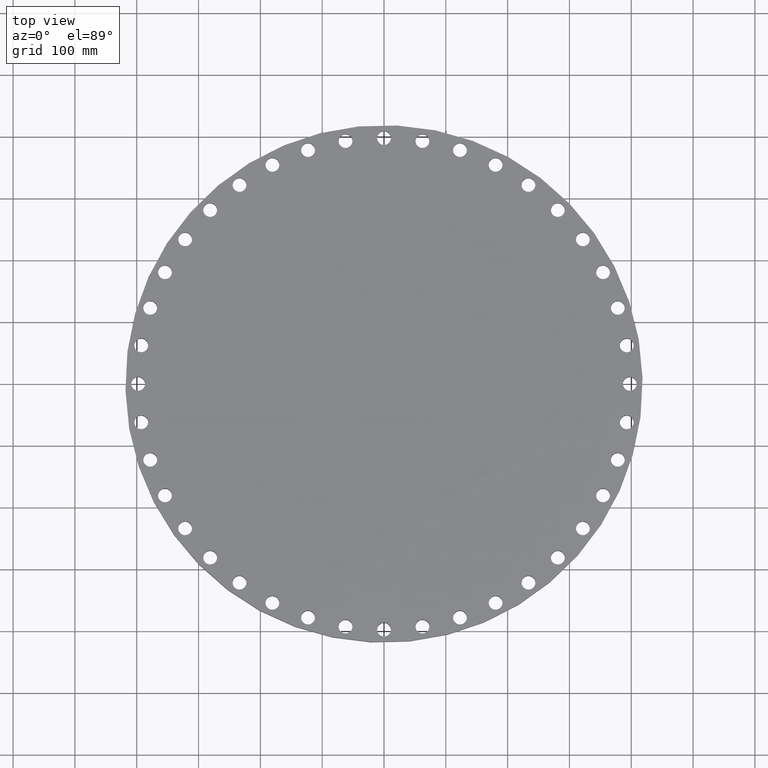
[diagram: clean part render]
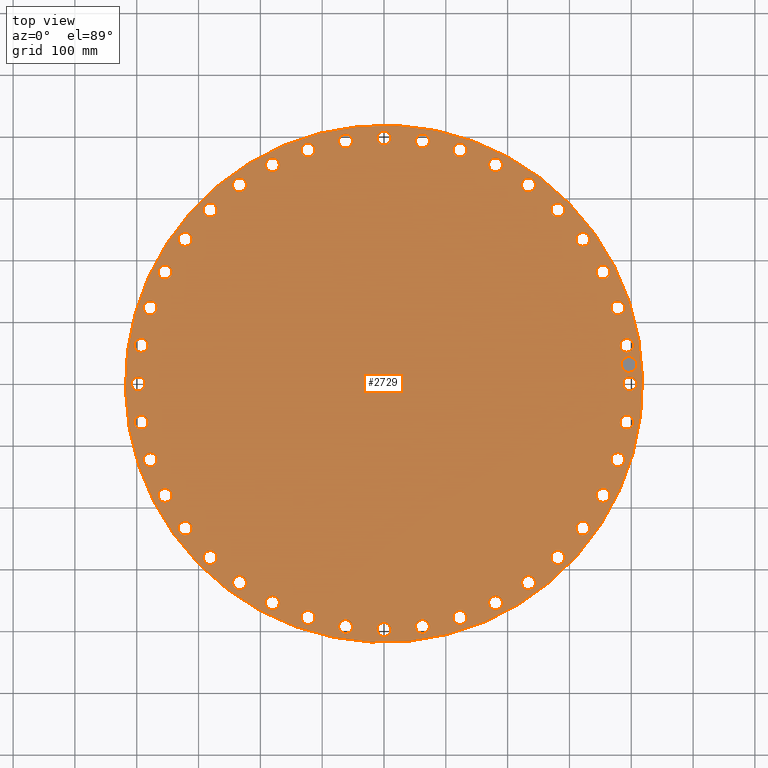
[diagram: same view with one face highlighted and labeled with its STEP entity id]
A machine part, top view. The second image highlights one B-rep face of the part: STEP entity #2729.
In plain terms, the highlighted planar face has unit normal (0, 0, -1).
Its self-contained STEP definition (entity closure, byte-faithful):
#65=AXIS2_PLACEMENT_3D('Circle Axis2P3D',#63,#64,$) ;
#82=AXIS2_PLACEMENT_3D('Circle Axis2P3D',#80,#81,$) ;
#115=AXIS2_PLACEMENT_3D('Circle Axis2P3D',#113,#114,$) ;
#139=AXIS2_PLACEMENT_3D('Circle Axis2P3D',#137,#138,$) ;
#886=AXIS2_PLACEMENT_3D('Circle Axis2P3D',#884,#885,$) ;
#898=AXIS2_PLACEMENT_3D('Circle Axis2P3D',#896,#897,$) ;
#929=AXIS2_PLACEMENT_3D('Circle Axis2P3D',#927,#928,$) ;
#941=AXIS2_PLACEMENT_3D('Circle Axis2P3D',#939,#940,$) ;
#972=AXIS2_PLACEMENT_3D('Circle Axis2P3D',#970,#971,$) ;
#984=AXIS2_PLACEMENT_3D('Circle Axis2P3D',#982,#983,$) ;
#1015=AXIS2_PLACEMENT_3D('Circle Axis2P3D',#1013,#1014,$) ;
#1027=AXIS2_PLACEMENT_3D('Circle Axis2P3D',#1025,#1026,$) ;
#1058=AXIS2_PLACEMENT_3D('Circle Axis2P3D',#1056,#1057,$) ;
#1070=AXIS2_PLACEMENT_3D('Circle Axis2P3D',#1068,#1069,$) ;
#1101=AXIS2_PLACEMENT_3D('Circle Axis2P3D',#1099,#1100,$) ;
#1113=AXIS2_PLACEMENT_3D('Circle Axis2P3D',#1111,#1112,$) ;
#1144=AXIS2_PLACEMENT_3D('Circle Axis2P3D',#1142,#1143,$) ;
#1156=AXIS2_PLACEMENT_3D('Circle Axis2P3D',#1154,#1155,$) ;
#1187=AXIS2_PLACEMENT_3D('Circle Axis2P3D',#1185,#1186,$) ;
#1199=AXIS2_PLACEMENT_3D('Circle Axis2P3D',#1197,#1198,$) ;
#1230=AXIS2_PLACEMENT_3D('Circle Axis2P3D',#1228,#1229,$) ;
#1242=AXIS2_PLACEMENT_3D('Circle Axis2P3D',#1240,#1241,$) ;
#1273=AXIS2_PLACEMENT_3D('Circle Axis2P3D',#1271,#1272,$) ;
#1285=AXIS2_PLACEMENT_3D('Circle Axis2P3D',#1283,#1284,$) ;
#1316=AXIS2_PLACEMENT_3D('Circle Axis2P3D',#1314,#1315,$) ;
#1328=AXIS2_PLACEMENT_3D('Circle Axis2P3D',#1326,#1327,$) ;
#1359=AXIS2_PLACEMENT_3D('Circle Axis2P3D',#1357,#1358,$) ;
#1371=AXIS2_PLACEMENT_3D('Circle Axis2P3D',#1369,#1370,$) ;
#1402=AXIS2_PLACEMENT_3D('Circle Axis2P3D',#1400,#1401,$) ;
#1414=AXIS2_PLACEMENT_3D('Circle Axis2P3D',#1412,#1413,$) ;
#1445=AXIS2_PLACEMENT_3D('Circle Axis2P3D',#1443,#1444,$) ;
#1457=AXIS2_PLACEMENT_3D('Circle Axis2P3D',#1455,#1456,$) ;
#1488=AXIS2_PLACEMENT_3D('Circle Axis2P3D',#1486,#1487,$) ;
#1500=AXIS2_PLACEMENT_3D('Circle Axis2P3D',#1498,#1499,$) ;
#1531=AXIS2_PLACEMENT_3D('Circle Axis2P3D',#1529,#1530,$) ;
#1543=AXIS2_PLACEMENT_3D('Circle Axis2P3D',#1541,#1542,$) ;
#1574=AXIS2_PLACEMENT_3D('Circle Axis2P3D',#1572,#1573,$) ;
#1586=AXIS2_PLACEMENT_3D('Circle Axis2P3D',#1584,#1585,$) ;
#1617=AXIS2_PLACEMENT_3D('Circle Axis2P3D',#1615,#1616,$) ;
#1629=AXIS2_PLACEMENT_3D('Circle Axis2P3D',#1627,#1628,$) ;
#1660=AXIS2_PLACEMENT_3D('Circle Axis2P3D',#1658,#1659,$) ;
#1672=AXIS2_PLACEMENT_3D('Circle Axis2P3D',#1670,#1671,$) ;
#1703=AXIS2_PLACEMENT_3D('Circle Axis2P3D',#1701,#1702,$) ;
#1715=AXIS2_PLACEMENT_3D('Circle Axis2P3D',#1713,#1714,$) ;
#1746=AXIS2_PLACEMENT_3D('Circle Axis2P3D',#1744,#1745,$) ;
#1758=AXIS2_PLACEMENT_3D('Circle Axis2P3D',#1756,#1757,$) ;
#1789=AXIS2_PLACEMENT_3D('Circle Axis2P3D',#1787,#1788,$) ;
#1801=AXIS2_PLACEMENT_3D('Circle Axis2P3D',#1799,#1800,$) ;
#1832=AXIS2_PLACEMENT_3D('Circle Axis2P3D',#1830,#1831,$) ;
#1844=AXIS2_PLACEMENT_3D('Circle Axis2P3D',#1842,#1843,$) ;
#1875=AXIS2_PLACEMENT_3D('Circle Axis2P3D',#1873,#1874,$) ;
#1887=AXIS2_PLACEMENT_3D('Circle Axis2P3D',#1885,#1886,$) ;
#1918=AXIS2_PLACEMENT_3D('Circle Axis2P3D',#1916,#1917,$) ;
#1930=AXIS2_PLACEMENT_3D('Circle Axis2P3D',#1928,#1929,$) ;
#1961=AXIS2_PLACEMENT_3D('Circle Axis2P3D',#1959,#1960,$) ;
#1973=AXIS2_PLACEMENT_3D('Circle Axis2P3D',#1971,#1972,$) ;
#2004=AXIS2_PLACEMENT_3D('Circle Axis2P3D',#2002,#2003,$) ;
#2016=AXIS2_PLACEMENT_3D('Circle Axis2P3D',#2014,#2015,$) ;
#2047=AXIS2_PLACEMENT_3D('Circle Axis2P3D',#2045,#2046,$) ;
#2059=AXIS2_PLACEMENT_3D('Circle Axis2P3D',#2057,#2058,$) ;
#2090=AXIS2_PLACEMENT_3D('Circle Axis2P3D',#2088,#2089,$) ;
#2102=AXIS2_PLACEMENT_3D('Circle Axis2P3D',#2100,#2101,$) ;
#2133=AXIS2_PLACEMENT_3D('Circle Axis2P3D',#2131,#2132,$) ;
#2145=AXIS2_PLACEMENT_3D('Circle Axis2P3D',#2143,#2144,$) ;
#2176=AXIS2_PLACEMENT_3D('Circle Axis2P3D',#2174,#2175,$) ;
#2188=AXIS2_PLACEMENT_3D('Circle Axis2P3D',#2186,#2187,$) ;
#2219=AXIS2_PLACEMENT_3D('Circle Axis2P3D',#2217,#2218,$) ;
#2231=AXIS2_PLACEMENT_3D('Circle Axis2P3D',#2229,#2230,$) ;
#2262=AXIS2_PLACEMENT_3D('Circle Axis2P3D',#2260,#2261,$) ;
#2274=AXIS2_PLACEMENT_3D('Circle Axis2P3D',#2272,#2273,$) ;
#2305=AXIS2_PLACEMENT_3D('Circle Axis2P3D',#2303,#2304,$) ;
#2317=AXIS2_PLACEMENT_3D('Circle Axis2P3D',#2315,#2316,$) ;
#2348=AXIS2_PLACEMENT_3D('Circle Axis2P3D',#2346,#2347,$) ;
#2360=AXIS2_PLACEMENT_3D('Circle Axis2P3D',#2358,#2359,$) ;
#2391=AXIS2_PLACEMENT_3D('Circle Axis2P3D',#2389,#2390,$) ;
#2403=AXIS2_PLACEMENT_3D('Circle Axis2P3D',#2401,#2402,$) ;
#2434=AXIS2_PLACEMENT_3D('Circle Axis2P3D',#2432,#2433,$) ;
#2446=AXIS2_PLACEMENT_3D('Circle Axis2P3D',#2444,#2445,$) ;
#2477=AXIS2_PLACEMENT_3D('Circle Axis2P3D',#2475,#2476,$) ;
#2489=AXIS2_PLACEMENT_3D('Circle Axis2P3D',#2487,#2488,$) ;
#2520=AXIS2_PLACEMENT_3D('Circle Axis2P3D',#2518,#2519,$) ;
#2532=AXIS2_PLACEMENT_3D('Circle Axis2P3D',#2530,#2531,$) ;
#2545=AXIS2_PLACEMENT_3D('Plane Axis2P3D',#2542,#2543,#2544) ;
#2713=AXIS2_PLACEMENT_3D('Circle Axis2P3D',#2711,#2712,$) ;
#2722=AXIS2_PLACEMENT_3D('Circle Axis2P3D',#2720,#2721,$) ;
#46=CARTESIAN_POINT('Vertex',(15.2688636728,0.210947236987,1.82000000001)) ;
#60=CARTESIAN_POINT('Vertex',(16.0411363273,-0.210947236987,1.82000000001)) ;
#63=CARTESIAN_POINT('Axis2P3D Location',(15.6550000001,0.,1.82000000001)) ;
#80=CARTESIAN_POINT('Axis2P3D Location',(15.6550000001,0.,1.82000000001)) ;
#110=CARTESIAN_POINT('Vertex',(7.89613862084,14.4537847944,1.82000000001)) ;
#113=CARTESIAN_POINT('Axis2P3D Location',(0.,0.,1.82000000001)) ;
#117=CARTESIAN_POINT('Vertex',(-7.89613862084,-14.4537847944,1.82000000001)) ;
#137=CARTESIAN_POINT('Axis2P3D Location',(0.,0.,1.82000000001)) ;
#874=CARTESIAN_POINT('Vertex',(-15.113878042,2.18022639398,1.82000000001)) ;
#881=CARTESIAN_POINT('Vertex',(-15.8106439022,2.71773670645,1.82000000001)) ;
#884=CARTESIAN_POINT('Axis2P3D Location',(-15.4622609721,2.44898155021,1.82000000001)) ;
#896=CARTESIAN_POINT('Axis2P3D Location',(-15.4622609721,2.44898155021,1.82000000001)) ;
#917=CARTESIAN_POINT('Vertex',(14.5867385736,-4.51771561537,1.82000000001)) ;
#924=CARTESIAN_POINT('Vertex',(15.1908409517,-5.15760647855,1.82000000001)) ;
#927=CARTESIAN_POINT('Axis2P3D Location',(14.8887897627,-4.83766104696,1.82000000001)) ;
#939=CARTESIAN_POINT('Axis2P3D Location',(14.8887897627,-4.83766104696,1.82000000001)) ;
#960=CARTESIAN_POINT('Vertex',(-14.5867385736,4.51771561537,1.82000000001)) ;
#967=CARTESIAN_POINT('Vertex',(-15.1908409517,5.15760647855,1.82000000001)) ;
#970=CARTESIAN_POINT('Axis2P3D Location',(-14.8887897627,4.83766104696,1.82000000001)) ;
#982=CARTESIAN_POINT('Axis2P3D Location',(-14.8887897627,4.83766104696,1.82000000001)) ;
#1003=CARTESIAN_POINT('Vertex',(13.700425191,-6.74396368487,1.82000000001)) ;
#1010=CARTESIAN_POINT('Vertex',(14.1969890815,-7.47047886203,1.82000000001)) ;
#1013=CARTESIAN_POINT('Axis2P3D Location',(13.9487071362,-7.10722127345,1.82000000001)) ;
#1025=CARTESIAN_POINT('Axis2P3D Location',(13.9487071362,-7.10722127345,1.82000000001)) ;
#1046=CARTESIAN_POINT('Vertex',(-13.700425191,6.74396368487,1.82000000001)) ;
#1053=CARTESIAN_POINT('Vertex',(-14.1969890815,7.47047886203,1.82000000001)) ;
#1056=CARTESIAN_POINT('Axis2P3D Location',(-13.9487071362,7.10722127345,1.82000000001)) ;
#1068=CARTESIAN_POINT('Axis2P3D Location',(-13.9487071362,7.10722127345,1.82000000001)) ;
#1089=CARTESIAN_POINT('Vertex',(12.476761871,-8.80415298651,1.82000000001)) ;
#1096=CARTESIAN_POINT('Vertex',(12.853560223,-9.59940326284,1.82000000001)) ;
#1099=CARTESIAN_POINT('Axis2P3D Location',(12.665161047,-9.20177812468,1.82000000001)) ;
#1111=CARTESIAN_POINT('Axis2P3D Location',(12.665161047,-9.20177812468,1.82000000001)) ;
#1132=CARTESIAN_POINT('Vertex',(-12.476761871,8.80415298651,1.82000000001)) ;
#1139=CARTESIAN_POINT('Vertex',(-12.853560223,9.59940326284,1.82000000001)) ;
#1142=CARTESIAN_POINT('Axis2P3D Location',(-12.665161047,9.20177812468,1.82000000001)) ;
#1154=CARTESIAN_POINT('Axis2P3D Location',(-12.665161047,9.20177812468,1.82000000001)) ;
#1175=CARTESIAN_POINT('Vertex',(10.9458792658,-10.6475548223,1.82000000001)) ;
#1182=CARTESIAN_POINT('Vertex',(11.1936340532,-11.4919584967,1.82000000001)) ;
#1185=CARTESIAN_POINT('Axis2P3D Location',(11.0697566595,-11.0697566595,1.82000000001)) ;
#1197=CARTESIAN_POINT('Axis2P3D Location',(11.0697566595,-11.0697566595,1.82000000001)) ;
#1218=CARTESIAN_POINT('Vertex',(-10.9458792658,10.6475548223,1.82000000001)) ;
#1225=CARTESIAN_POINT('Vertex',(-11.1936340532,11.4919584967,1.82000000001)) ;
#1228=CARTESIAN_POINT('Axis2P3D Location',(-11.0697566595,11.0697566595,1.82000000001)) ;
#1240=CARTESIAN_POINT('Axis2P3D Location',(-11.0697566595,11.0697566595,1.82000000001)) ;
#1261=CARTESIAN_POINT('Vertex',(9.14547278579,-12.2287785212,1.82000000001)) ;
#1268=CARTESIAN_POINT('Vertex',(9.25808346356,-13.1015435728,1.82000000001)) ;
#1271=CARTESIAN_POINT('Axis2P3D Location',(9.20177812468,-12.665161047,1.82000000001)) ;
#1283=CARTESIAN_POINT('Axis2P3D Location',(9.20177812468,-12.665161047,1.82000000001)) ;
#1304=CARTESIAN_POINT('Vertex',(-9.14547278579,12.2287785212,1.82000000001)) ;
#1311=CARTESIAN_POINT('Vertex',(-9.25808346356,13.1015435728,1.82000000001)) ;
#1314=CARTESIAN_POINT('Axis2P3D Location',(-9.20177812468,12.665161047,1.82000000001)) ;
#1326=CARTESIAN_POINT('Axis2P3D Location',(-9.20177812468,12.665161047,1.82000000001)) ;
#1347=CARTESIAN_POINT('Vertex',(7.1198744137,-13.5088891079,1.82000000001)) ;
#1354=CARTESIAN_POINT('Vertex',(7.0945681332,-14.3885251646,1.82000000001)) ;
#1357=CARTESIAN_POINT('Axis2P3D Location',(7.10722127345,-13.9487071362,1.82000000001)) ;
#1369=CARTESIAN_POINT('Axis2P3D Location',(7.10722127345,-13.9487071362,1.82000000001)) ;
#1390=CARTESIAN_POINT('Vertex',(-7.1198744137,13.5088891079,1.82000000001)) ;
#1397=CARTESIAN_POINT('Vertex',(-7.0945681332,14.3885251646,1.82000000001)) ;
#1400=CARTESIAN_POINT('Axis2P3D Location',(-7.10722127345,13.9487071362,1.82000000001)) ;
#1412=CARTESIAN_POINT('Axis2P3D Location',(-7.10722127345,13.9487071362,1.82000000001)) ;
#1433=CARTESIAN_POINT('Vertex',(4.91896110403,-14.4563660113,1.82000000001)) ;
#1440=CARTESIAN_POINT('Vertex',(4.75636098989,-15.321213514,1.82000000001)) ;
#1443=CARTESIAN_POINT('Axis2P3D Location',(4.83766104696,-14.8887897627,1.82000000001)) ;
#1455=CARTESIAN_POINT('Axis2P3D Location',(4.83766104696,-14.8887897627,1.82000000001)) ;
#1476=CARTESIAN_POINT('Vertex',(-4.91896110403,14.4563660113,1.82000000001)) ;
#1483=CARTESIAN_POINT('Vertex',(-4.75636098989,15.321213514,1.82000000001)) ;
#1486=CARTESIAN_POINT('Axis2P3D Location',(-4.83766104696,14.8887897627,1.82000000001)) ;
#1498=CARTESIAN_POINT('Axis2P3D Location',(-4.83766104696,14.8887897627,1.82000000001)) ;
#1519=CARTESIAN_POINT('Vertex',(2.59692664688,-15.0478792056,1.82000000001)) ;
#1526=CARTESIAN_POINT('Vertex',(2.30103645355,-15.8766427385,1.82000000001)) ;
#1529=CARTESIAN_POINT('Axis2P3D Location',(2.44898155021,-15.4622609721,1.82000000001)) ;
#1541=CARTESIAN_POINT('Axis2P3D Location',(2.44898155021,-15.4622609721,1.82000000001)) ;
#1562=CARTESIAN_POINT('Vertex',(-2.59692664688,15.0478792056,1.82000000001)) ;
#1569=CARTESIAN_POINT('Vertex',(-2.30103645355,15.8766427385,1.82000000001)) ;
#1572=CARTESIAN_POINT('Axis2P3D Location',(-2.44898155021,15.4622609721,1.82000000001)) ;
#1584=CARTESIAN_POINT('Axis2P3D Location',(-2.44898155021,15.4622609721,1.82000000001)) ;
#1605=CARTESIAN_POINT('Vertex',(0.210947236987,-15.2688636728,1.82000000001)) ;
#1612=CARTESIAN_POINT('Vertex',(-0.210947236987,-16.0411363273,1.82000000001)) ;
#1615=CARTESIAN_POINT('Axis2P3D Location',(4.43470057215E-015,-15.6550000001,1.82000000001)) ;
#1627=CARTESIAN_POINT('Axis2P3D Location',(4.43470057215E-015,-15.6550000001,1.82000000001)) ;
#1648=CARTESIAN_POINT('Vertex',(-0.210947236987,15.2688636728,1.82000000001)) ;
#1655=CARTESIAN_POINT('Vertex',(0.210947236987,16.0411363273,1.82000000001)) ;
#1658=CARTESIAN_POINT('Axis2P3D Location',(-1.45422801302E-014,15.6550000001,1.82000000001)) ;
#1670=CARTESIAN_POINT('Axis2P3D Location',(-1.45422801302E-014,15.6550000001,1.82000000001)) ;
#1691=CARTESIAN_POINT('Vertex',(-2.18022639398,-15.113878042,1.82000000001)) ;
#1698=CARTESIAN_POINT('Vertex',(-2.71773670645,-15.8106439022,1.82000000001)) ;
#1701=CARTESIAN_POINT('Axis2P3D Location',(-2.44898155021,-15.4622609721,1.82000000001)) ;
#1713=CARTESIAN_POINT('Axis2P3D Location',(-2.44898155021,-15.4622609721,1.82000000001)) ;
#1734=CARTESIAN_POINT('Vertex',(2.18022639398,15.113878042,1.82000000001)) ;
#1741=CARTESIAN_POINT('Vertex',(2.71773670645,15.8106439022,1.82000000001)) ;
#1744=CARTESIAN_POINT('Axis2P3D Location',(2.44898155021,15.4622609721,1.82000000001)) ;
#1756=CARTESIAN_POINT('Axis2P3D Location',(2.44898155021,15.4622609721,1.82000000001)) ;
#1777=CARTESIAN_POINT('Vertex',(-4.51771561537,-14.5867385736,1.82000000001)) ;
#1784=CARTESIAN_POINT('Vertex',(-5.15760647855,-15.1908409517,1.82000000001)) ;
#1787=CARTESIAN_POINT('Axis2P3D Location',(-4.83766104696,-14.8887897627,1.82000000001)) ;
#1799=CARTESIAN_POINT('Axis2P3D Location',(-4.83766104696,-14.8887897627,1.82000000001)) ;
#1820=CARTESIAN_POINT('Vertex',(4.51771561537,14.5867385736,1.82000000001)) ;
#1827=CARTESIAN_POINT('Vertex',(5.15760647855,15.1908409517,1.82000000001)) ;
#1830=CARTESIAN_POINT('Axis2P3D Location',(4.83766104696,14.8887897627,1.82000000001)) ;
#1842=CARTESIAN_POINT('Axis2P3D Location',(4.83766104696,14.8887897627,1.82000000001)) ;
#1863=CARTESIAN_POINT('Vertex',(-6.74396368487,-13.700425191,1.82000000001)) ;
#1870=CARTESIAN_POINT('Vertex',(-7.47047886203,-14.1969890815,1.82000000001)) ;
#1873=CARTESIAN_POINT('Axis2P3D Location',(-7.10722127345,-13.9487071362,1.82000000001)) ;
#1885=CARTESIAN_POINT('Axis2P3D Location',(-7.10722127345,-13.9487071362,1.82000000001)) ;
#1906=CARTESIAN_POINT('Vertex',(6.74396368487,13.700425191,1.82000000001)) ;
#1913=CARTESIAN_POINT('Vertex',(7.47047886203,14.1969890815,1.82000000001)) ;
#1916=CARTESIAN_POINT('Axis2P3D Location',(7.10722127345,13.9487071362,1.82000000001)) ;
#1928=CARTESIAN_POINT('Axis2P3D Location',(7.10722127345,13.9487071362,1.82000000001)) ;
#1949=CARTESIAN_POINT('Vertex',(-8.80415298651,-12.476761871,1.82000000001)) ;
#1956=CARTESIAN_POINT('Vertex',(-9.59940326284,-12.853560223,1.82000000001)) ;
#1959=CARTESIAN_POINT('Axis2P3D Location',(-9.20177812468,-12.665161047,1.82000000001)) ;
#1971=CARTESIAN_POINT('Axis2P3D Location',(-9.20177812468,-12.665161047,1.82000000001)) ;
#1992=CARTESIAN_POINT('Vertex',(8.80415298651,12.476761871,1.82000000001)) ;
#1999=CARTESIAN_POINT('Vertex',(9.59940326284,12.853560223,1.82000000001)) ;
#2002=CARTESIAN_POINT('Axis2P3D Location',(9.20177812468,12.665161047,1.82000000001)) ;
#2014=CARTESIAN_POINT('Axis2P3D Location',(9.20177812468,12.665161047,1.82000000001)) ;
#2035=CARTESIAN_POINT('Vertex',(-10.6475548223,-10.9458792658,1.82000000001)) ;
#2042=CARTESIAN_POINT('Vertex',(-11.4919584967,-11.1936340532,1.82000000001)) ;
#2045=CARTESIAN_POINT('Axis2P3D Location',(-11.0697566595,-11.0697566595,1.82000000001)) ;
#2057=CARTESIAN_POINT('Axis2P3D Location',(-11.0697566595,-11.0697566595,1.82000000001)) ;
#2078=CARTESIAN_POINT('Vertex',(10.6475548223,10.9458792658,1.82000000001)) ;
#2085=CARTESIAN_POINT('Vertex',(11.4919584967,11.1936340532,1.82000000001)) ;
#2088=CARTESIAN_POINT('Axis2P3D Location',(11.0697566595,11.0697566595,1.82000000001)) ;
#2100=CARTESIAN_POINT('Axis2P3D Location',(11.0697566595,11.0697566595,1.82000000001)) ;
#2121=CARTESIAN_POINT('Vertex',(-12.2287785212,-9.14547278579,1.82000000001)) ;
#2128=CARTESIAN_POINT('Vertex',(-13.1015435728,-9.25808346356,1.82000000001)) ;
#2131=CARTESIAN_POINT('Axis2P3D Location',(-12.665161047,-9.20177812468,1.82000000001)) ;
#2143=CARTESIAN_POINT('Axis2P3D Location',(-12.665161047,-9.20177812468,1.82000000001)) ;
#2164=CARTESIAN_POINT('Vertex',(12.2287785212,9.14547278579,1.82000000001)) ;
#2171=CARTESIAN_POINT('Vertex',(13.1015435728,9.25808346356,1.82000000001)) ;
#2174=CARTESIAN_POINT('Axis2P3D Location',(12.665161047,9.20177812468,1.82000000001)) ;
#2186=CARTESIAN_POINT('Axis2P3D Location',(12.665161047,9.20177812468,1.82000000001)) ;
#2207=CARTESIAN_POINT('Vertex',(-13.5088891079,-7.1198744137,1.82000000001)) ;
#2214=CARTESIAN_POINT('Vertex',(-14.3885251646,-7.0945681332,1.82000000001)) ;
#2217=CARTESIAN_POINT('Axis2P3D Location',(-13.9487071362,-7.10722127345,1.82000000001)) ;
#2229=CARTESIAN_POINT('Axis2P3D Location',(-13.9487071362,-7.10722127345,1.82000000001)) ;
#2250=CARTESIAN_POINT('Vertex',(13.5088891079,7.1198744137,1.82000000001)) ;
#2257=CARTESIAN_POINT('Vertex',(14.3885251646,7.0945681332,1.82000000001)) ;
#2260=CARTESIAN_POINT('Axis2P3D Location',(13.9487071362,7.10722127345,1.82000000001)) ;
#2272=CARTESIAN_POINT('Axis2P3D Location',(13.9487071362,7.10722127345,1.82000000001)) ;
#2293=CARTESIAN_POINT('Vertex',(-14.4563660113,-4.91896110403,1.82000000001)) ;
#2300=CARTESIAN_POINT('Vertex',(-15.321213514,-4.75636098989,1.82000000001)) ;
#2303=CARTESIAN_POINT('Axis2P3D Location',(-14.8887897627,-4.83766104696,1.82000000001)) ;
#2315=CARTESIAN_POINT('Axis2P3D Location',(-14.8887897627,-4.83766104696,1.82000000001)) ;
#2336=CARTESIAN_POINT('Vertex',(14.4563660113,4.91896110403,1.82000000001)) ;
#2343=CARTESIAN_POINT('Vertex',(15.321213514,4.75636098989,1.82000000001)) ;
#2346=CARTESIAN_POINT('Axis2P3D Location',(14.8887897627,4.83766104696,1.82000000001)) ;
#2358=CARTESIAN_POINT('Axis2P3D Location',(14.8887897627,4.83766104696,1.82000000001)) ;
#2379=CARTESIAN_POINT('Vertex',(-15.0478792056,-2.59692664688,1.82000000001)) ;
#2386=CARTESIAN_POINT('Vertex',(-15.8766427385,-2.30103645355,1.82000000001)) ;
#2389=CARTESIAN_POINT('Axis2P3D Location',(-15.4622609721,-2.44898155021,1.82000000001)) ;
#2401=CARTESIAN_POINT('Axis2P3D Location',(-15.4622609721,-2.44898155021,1.82000000001)) ;
#2422=CARTESIAN_POINT('Vertex',(15.0478792056,2.59692664688,1.82000000001)) ;
#2429=CARTESIAN_POINT('Vertex',(15.8766427385,2.30103645355,1.82000000001)) ;
#2432=CARTESIAN_POINT('Axis2P3D Location',(15.4622609721,2.44898155021,1.82000000001)) ;
#2444=CARTESIAN_POINT('Axis2P3D Location',(15.4622609721,2.44898155021,1.82000000001)) ;
#2465=CARTESIAN_POINT('Vertex',(-15.2688636728,-0.210947236987,1.82000000001)) ;
#2472=CARTESIAN_POINT('Vertex',(-16.0411363273,0.210947236987,1.82000000001)) ;
#2475=CARTESIAN_POINT('Axis2P3D Location',(-15.6550000001,-8.8694011443E-015,1.82000000001)) ;
#2487=CARTESIAN_POINT('Axis2P3D Location',(-15.6550000001,-8.8694011443E-015,1.82000000001)) ;
#2508=CARTESIAN_POINT('Vertex',(15.113878042,-2.18022639398,1.82000000001)) ;
#2515=CARTESIAN_POINT('Vertex',(15.8106439022,-2.71773670645,1.82000000001)) ;
#2518=CARTESIAN_POINT('Axis2P3D Location',(15.4622609721,-2.44898155021,1.82000000001)) ;
#2530=CARTESIAN_POINT('Axis2P3D Location',(15.4622609721,-2.44898155021,1.82000000001)) ;
#2542=CARTESIAN_POINT('Axis2P3D Location',(0.,16.4700000001,1.82000000001)) ;
#2711=CARTESIAN_POINT('Axis2P3D Location',(15.6067408597,1.22827714362,1.82000000001)) ;
#2715=CARTESIAN_POINT('Vertex',(15.5675113118,1.72673581049,1.82000000001)) ;
#2717=CARTESIAN_POINT('Vertex',(15.6459704075,0.729818476756,1.82000000001)) ;
#2720=CARTESIAN_POINT('Axis2P3D Location',(15.6067408597,1.22827714362,1.82000000001)) ;
#64=DIRECTION('Axis2P3D Direction',(0.,-0.,-0.0393700787402)) ;
#81=DIRECTION('Axis2P3D Direction',(0.,-0.,-0.0393700787402)) ;
#114=DIRECTION('Axis2P3D Direction',(0.,0.,-0.0393700787402)) ;
#138=DIRECTION('Axis2P3D Direction',(0.,0.,-0.0393700787402)) ;
#885=DIRECTION('Axis2P3D Direction',(0.,0.,-0.0393700787402)) ;
#897=DIRECTION('Axis2P3D Direction',(0.,0.,-0.0393700787402)) ;
#928=DIRECTION('Axis2P3D Direction',(0.,-0.,-0.0393700787402)) ;
#940=DIRECTION('Axis2P3D Direction',(0.,-0.,-0.0393700787402)) ;
#971=DIRECTION('Axis2P3D Direction',(0.,0.,-0.0393700787402)) ;
#983=DIRECTION('Axis2P3D Direction',(0.,0.,-0.0393700787402)) ;
#1014=DIRECTION('Axis2P3D Direction',(0.,-0.,-0.0393700787402)) ;
#1026=DIRECTION('Axis2P3D Direction',(0.,-0.,-0.0393700787402)) ;
#1057=DIRECTION('Axis2P3D Direction',(0.,0.,-0.0393700787402)) ;
#1069=DIRECTION('Axis2P3D Direction',(0.,0.,-0.0393700787402)) ;
#1100=DIRECTION('Axis2P3D Direction',(0.,-0.,-0.0393700787402)) ;
#1112=DIRECTION('Axis2P3D Direction',(0.,-0.,-0.0393700787402)) ;
#1143=DIRECTION('Axis2P3D Direction',(0.,0.,-0.0393700787402)) ;
#1155=DIRECTION('Axis2P3D Direction',(0.,0.,-0.0393700787402)) ;
#1186=DIRECTION('Axis2P3D Direction',(0.,-0.,-0.0393700787402)) ;
#1198=DIRECTION('Axis2P3D Direction',(0.,-0.,-0.0393700787402)) ;
#1229=DIRECTION('Axis2P3D Direction',(0.,0.,-0.0393700787402)) ;
#1241=DIRECTION('Axis2P3D Direction',(0.,0.,-0.0393700787402)) ;
#1272=DIRECTION('Axis2P3D Direction',(0.,-0.,-0.0393700787402)) ;
#1284=DIRECTION('Axis2P3D Direction',(0.,-0.,-0.0393700787402)) ;
#1315=DIRECTION('Axis2P3D Direction',(0.,0.,-0.0393700787402)) ;
#1327=DIRECTION('Axis2P3D Direction',(0.,0.,-0.0393700787402)) ;
#1358=DIRECTION('Axis2P3D Direction',(0.,-0.,-0.0393700787402)) ;
#1370=DIRECTION('Axis2P3D Direction',(0.,-0.,-0.0393700787402)) ;
#1401=DIRECTION('Axis2P3D Direction',(0.,0.,-0.0393700787402)) ;
#1413=DIRECTION('Axis2P3D Direction',(0.,0.,-0.0393700787402)) ;
#1444=DIRECTION('Axis2P3D Direction',(0.,-0.,-0.0393700787402)) ;
#1456=DIRECTION('Axis2P3D Direction',(0.,-0.,-0.0393700787402)) ;
#1487=DIRECTION('Axis2P3D Direction',(0.,0.,-0.0393700787402)) ;
#1499=DIRECTION('Axis2P3D Direction',(0.,0.,-0.0393700787402)) ;
#1530=DIRECTION('Axis2P3D Direction',(0.,-0.,-0.0393700787402)) ;
#1542=DIRECTION('Axis2P3D Direction',(0.,-0.,-0.0393700787402)) ;
#1573=DIRECTION('Axis2P3D Direction',(0.,0.,-0.0393700787402)) ;
#1585=DIRECTION('Axis2P3D Direction',(0.,0.,-0.0393700787402)) ;
#1616=DIRECTION('Axis2P3D Direction',(0.,-0.,-0.0393700787402)) ;
#1628=DIRECTION('Axis2P3D Direction',(0.,-0.,-0.0393700787402)) ;
#1659=DIRECTION('Axis2P3D Direction',(0.,0.,-0.0393700787402)) ;
#1671=DIRECTION('Axis2P3D Direction',(0.,0.,-0.0393700787402)) ;
#1702=DIRECTION('Axis2P3D Direction',(-0.,0.,-0.0393700787402)) ;
#1714=DIRECTION('Axis2P3D Direction',(-0.,0.,-0.0393700787402)) ;
#1745=DIRECTION('Axis2P3D Direction',(0.,0.,-0.0393700787402)) ;
#1757=DIRECTION('Axis2P3D Direction',(0.,0.,-0.0393700787402)) ;
#1788=DIRECTION('Axis2P3D Direction',(-0.,0.,-0.0393700787402)) ;
#1800=DIRECTION('Axis2P3D Direction',(-0.,0.,-0.0393700787402)) ;
#1831=DIRECTION('Axis2P3D Direction',(0.,0.,-0.0393700787402)) ;
#1843=DIRECTION('Axis2P3D Direction',(0.,0.,-0.0393700787402)) ;
#1874=DIRECTION('Axis2P3D Direction',(-0.,0.,-0.0393700787402)) ;
#1886=DIRECTION('Axis2P3D Direction',(-0.,0.,-0.0393700787402)) ;
#1917=DIRECTION('Axis2P3D Direction',(0.,0.,-0.0393700787402)) ;
#1929=DIRECTION('Axis2P3D Direction',(0.,0.,-0.0393700787402)) ;
#1960=DIRECTION('Axis2P3D Direction',(-0.,0.,-0.0393700787402)) ;
#1972=DIRECTION('Axis2P3D Direction',(-0.,0.,-0.0393700787402)) ;
#2003=DIRECTION('Axis2P3D Direction',(0.,0.,-0.0393700787402)) ;
#2015=DIRECTION('Axis2P3D Direction',(0.,0.,-0.0393700787402)) ;
#2046=DIRECTION('Axis2P3D Direction',(-0.,0.,-0.0393700787402)) ;
#2058=DIRECTION('Axis2P3D Direction',(-0.,0.,-0.0393700787402)) ;
#2089=DIRECTION('Axis2P3D Direction',(0.,0.,-0.0393700787402)) ;
#2101=DIRECTION('Axis2P3D Direction',(0.,0.,-0.0393700787402)) ;
#2132=DIRECTION('Axis2P3D Direction',(-0.,0.,-0.0393700787402)) ;
#2144=DIRECTION('Axis2P3D Direction',(-0.,0.,-0.0393700787402)) ;
#2175=DIRECTION('Axis2P3D Direction',(0.,0.,-0.0393700787402)) ;
#2187=DIRECTION('Axis2P3D Direction',(0.,0.,-0.0393700787402)) ;
#2218=DIRECTION('Axis2P3D Direction',(-0.,0.,-0.0393700787402)) ;
#2230=DIRECTION('Axis2P3D Direction',(-0.,0.,-0.0393700787402)) ;
#2261=DIRECTION('Axis2P3D Direction',(0.,0.,-0.0393700787402)) ;
#2273=DIRECTION('Axis2P3D Direction',(0.,0.,-0.0393700787402)) ;
#2304=DIRECTION('Axis2P3D Direction',(-0.,0.,-0.0393700787402)) ;
#2316=DIRECTION('Axis2P3D Direction',(-0.,0.,-0.0393700787402)) ;
#2347=DIRECTION('Axis2P3D Direction',(0.,0.,-0.0393700787402)) ;
#2359=DIRECTION('Axis2P3D Direction',(0.,0.,-0.0393700787402)) ;
#2390=DIRECTION('Axis2P3D Direction',(-0.,0.,-0.0393700787402)) ;
#2402=DIRECTION('Axis2P3D Direction',(-0.,0.,-0.0393700787402)) ;
#2433=DIRECTION('Axis2P3D Direction',(0.,0.,-0.0393700787402)) ;
#2445=DIRECTION('Axis2P3D Direction',(0.,0.,-0.0393700787402)) ;
#2476=DIRECTION('Axis2P3D Direction',(-0.,0.,-0.0393700787402)) ;
#2488=DIRECTION('Axis2P3D Direction',(-0.,0.,-0.0393700787402)) ;
#2519=DIRECTION('Axis2P3D Direction',(0.,-0.,-0.0393700787402)) ;
#2531=DIRECTION('Axis2P3D Direction',(0.,-0.,-0.0393700787402)) ;
#2543=DIRECTION('Axis2P3D Direction',(0.,0.,-0.0393700787402)) ;
#2544=DIRECTION('Axis2P3D XDirection',(0.0393700787402,0.,0.)) ;
#2712=DIRECTION('Axis2P3D Direction',(0.,0.,-0.0393700787402)) ;
#2721=DIRECTION('Axis2P3D Direction',(0.,0.,-0.0393700787402)) ;
#2548=ORIENTED_EDGE('',*,*,#119,.F.) ;
#2549=ORIENTED_EDGE('',*,*,#141,.F.) ;
#2552=ORIENTED_EDGE('',*,*,#67,.T.) ;
#2553=ORIENTED_EDGE('',*,*,#84,.T.) ;
#2556=ORIENTED_EDGE('',*,*,#2534,.T.) ;
#2557=ORIENTED_EDGE('',*,*,#2522,.T.) ;
#2560=ORIENTED_EDGE('',*,*,#943,.T.) ;
#2561=ORIENTED_EDGE('',*,*,#931,.T.) ;
#2564=ORIENTED_EDGE('',*,*,#1029,.T.) ;
#2565=ORIENTED_EDGE('',*,*,#1017,.T.) ;
#2568=ORIENTED_EDGE('',*,*,#1115,.T.) ;
#2569=ORIENTED_EDGE('',*,*,#1103,.T.) ;
#2572=ORIENTED_EDGE('',*,*,#1201,.T.) ;
#2573=ORIENTED_EDGE('',*,*,#1189,.T.) ;
#2576=ORIENTED_EDGE('',*,*,#1287,.T.) ;
#2577=ORIENTED_EDGE('',*,*,#1275,.T.) ;
#2580=ORIENTED_EDGE('',*,*,#1373,.T.) ;
#2581=ORIENTED_EDGE('',*,*,#1361,.T.) ;
#2584=ORIENTED_EDGE('',*,*,#1459,.T.) ;
#2585=ORIENTED_EDGE('',*,*,#1447,.T.) ;
#2588=ORIENTED_EDGE('',*,*,#1545,.T.) ;
#2589=ORIENTED_EDGE('',*,*,#1533,.T.) ;
#2592=ORIENTED_EDGE('',*,*,#1631,.T.) ;
#2593=ORIENTED_EDGE('',*,*,#1619,.T.) ;
#2596=ORIENTED_EDGE('',*,*,#1717,.T.) ;
#2597=ORIENTED_EDGE('',*,*,#1705,.T.) ;
#2600=ORIENTED_EDGE('',*,*,#1803,.T.) ;
#2601=ORIENTED_EDGE('',*,*,#1791,.T.) ;
#2604=ORIENTED_EDGE('',*,*,#1889,.T.) ;
#2605=ORIENTED_EDGE('',*,*,#1877,.T.) ;
#2608=ORIENTED_EDGE('',*,*,#1975,.T.) ;
#2609=ORIENTED_EDGE('',*,*,#1963,.T.) ;
#2612=ORIENTED_EDGE('',*,*,#2061,.T.) ;
#2613=ORIENTED_EDGE('',*,*,#2049,.T.) ;
#2616=ORIENTED_EDGE('',*,*,#2147,.T.) ;
#2617=ORIENTED_EDGE('',*,*,#2135,.T.) ;
#2620=ORIENTED_EDGE('',*,*,#2233,.T.) ;
#2621=ORIENTED_EDGE('',*,*,#2221,.T.) ;
#2624=ORIENTED_EDGE('',*,*,#2319,.T.) ;
#2625=ORIENTED_EDGE('',*,*,#2307,.T.) ;
#2628=ORIENTED_EDGE('',*,*,#2405,.T.) ;
#2629=ORIENTED_EDGE('',*,*,#2393,.T.) ;
#2632=ORIENTED_EDGE('',*,*,#2491,.T.) ;
#2633=ORIENTED_EDGE('',*,*,#2479,.T.) ;
#2636=ORIENTED_EDGE('',*,*,#900,.T.) ;
#2637=ORIENTED_EDGE('',*,*,#888,.T.) ;
#2640=ORIENTED_EDGE('',*,*,#986,.T.) ;
#2641=ORIENTED_EDGE('',*,*,#974,.T.) ;
#2644=ORIENTED_EDGE('',*,*,#1072,.T.) ;
#2645=ORIENTED_EDGE('',*,*,#1060,.T.) ;
#2648=ORIENTED_EDGE('',*,*,#1158,.T.) ;
#2649=ORIENTED_EDGE('',*,*,#1146,.T.) ;
#2652=ORIENTED_EDGE('',*,*,#1244,.T.) ;
#2653=ORIENTED_EDGE('',*,*,#1232,.T.) ;
#2656=ORIENTED_EDGE('',*,*,#1330,.T.) ;
#2657=ORIENTED_EDGE('',*,*,#1318,.T.) ;
#2660=ORIENTED_EDGE('',*,*,#1416,.T.) ;
#2661=ORIENTED_EDGE('',*,*,#1404,.T.) ;
#2664=ORIENTED_EDGE('',*,*,#1502,.T.) ;
#2665=ORIENTED_EDGE('',*,*,#1490,.T.) ;
#2668=ORIENTED_EDGE('',*,*,#1588,.T.) ;
#2669=ORIENTED_EDGE('',*,*,#1576,.T.) ;
#2672=ORIENTED_EDGE('',*,*,#1674,.T.) ;
#2673=ORIENTED_EDGE('',*,*,#1662,.T.) ;
#2676=ORIENTED_EDGE('',*,*,#1760,.T.) ;
#2677=ORIENTED_EDGE('',*,*,#1748,.T.) ;
#2680=ORIENTED_EDGE('',*,*,#1846,.T.) ;
#2681=ORIENTED_EDGE('',*,*,#1834,.T.) ;
#2684=ORIENTED_EDGE('',*,*,#1932,.T.) ;
#2685=ORIENTED_EDGE('',*,*,#1920,.T.) ;
#2688=ORIENTED_EDGE('',*,*,#2018,.T.) ;
#2689=ORIENTED_EDGE('',*,*,#2006,.T.) ;
#2692=ORIENTED_EDGE('',*,*,#2104,.T.) ;
#2693=ORIENTED_EDGE('',*,*,#2092,.T.) ;
#2696=ORIENTED_EDGE('',*,*,#2190,.T.) ;
#2697=ORIENTED_EDGE('',*,*,#2178,.T.) ;
#2700=ORIENTED_EDGE('',*,*,#2276,.T.) ;
#2701=ORIENTED_EDGE('',*,*,#2264,.T.) ;
#2704=ORIENTED_EDGE('',*,*,#2362,.T.) ;
#2705=ORIENTED_EDGE('',*,*,#2350,.T.) ;
#2708=ORIENTED_EDGE('',*,*,#2448,.T.) ;
#2709=ORIENTED_EDGE('',*,*,#2436,.T.) ;
#2726=ORIENTED_EDGE('',*,*,#2719,.T.) ;
#2727=ORIENTED_EDGE('',*,*,#2724,.T.) ;
#2554=FACE_BOUND('',#2551,.T.) ;
#2558=FACE_BOUND('',#2555,.T.) ;
#2562=FACE_BOUND('',#2559,.T.) ;
#2566=FACE_BOUND('',#2563,.T.) ;
#2570=FACE_BOUND('',#2567,.T.) ;
#2574=FACE_BOUND('',#2571,.T.) ;
#2578=FACE_BOUND('',#2575,.T.) ;
#2582=FACE_BOUND('',#2579,.T.) ;
#2586=FACE_BOUND('',#2583,.T.) ;
#2590=FACE_BOUND('',#2587,.T.) ;
#2594=FACE_BOUND('',#2591,.T.) ;
#2598=FACE_BOUND('',#2595,.T.) ;
#2602=FACE_BOUND('',#2599,.T.) ;
#2606=FACE_BOUND('',#2603,.T.) ;
#2610=FACE_BOUND('',#2607,.T.) ;
#2614=FACE_BOUND('',#2611,.T.) ;
#2618=FACE_BOUND('',#2615,.T.) ;
#2622=FACE_BOUND('',#2619,.T.) ;
#2626=FACE_BOUND('',#2623,.T.) ;
#2630=FACE_BOUND('',#2627,.T.) ;
#2634=FACE_BOUND('',#2631,.T.) ;
#2638=FACE_BOUND('',#2635,.T.) ;
#2642=FACE_BOUND('',#2639,.T.) ;
#2646=FACE_BOUND('',#2643,.T.) ;
#2650=FACE_BOUND('',#2647,.T.) ;
#2654=FACE_BOUND('',#2651,.T.) ;
#2658=FACE_BOUND('',#2655,.T.) ;
#2662=FACE_BOUND('',#2659,.T.) ;
#2666=FACE_BOUND('',#2663,.T.) ;
#2670=FACE_BOUND('',#2667,.T.) ;
#2674=FACE_BOUND('',#2671,.T.) ;
#2678=FACE_BOUND('',#2675,.T.) ;
#2682=FACE_BOUND('',#2679,.T.) ;
#2686=FACE_BOUND('',#2683,.T.) ;
#2690=FACE_BOUND('',#2687,.T.) ;
#2694=FACE_BOUND('',#2691,.T.) ;
#2698=FACE_BOUND('',#2695,.T.) ;
#2702=FACE_BOUND('',#2699,.T.) ;
#2706=FACE_BOUND('',#2703,.T.) ;
#2710=FACE_BOUND('',#2707,.T.) ;
#2728=FACE_BOUND('',#2725,.T.) ;
#2729=ADVANCED_FACE('PartBody',(#2550,#2554,#2558,#2562,#2566,#2570,#2574,#2578,#2582,#2586,#2590,#2594,#2598,#2602,#2606,#2610,#2614,#2618,#2622,#2626,#2630,#2634,#2638,#2642,#2646,#2650,#2654,#2658,#2662,#2666,#2670,#2674,#2678,#2682,#2686,#2690,#2694,#2698,#2702,#2706,#2710,#2728),#2546,.F.) ;
#66=CIRCLE('generated circle',#65,0.440000000002) ;
#83=CIRCLE('generated circle',#82,0.440000000002) ;
#116=CIRCLE('generated circle',#115,16.4700000001) ;
#140=CIRCLE('generated circle',#139,16.4700000001) ;
#887=CIRCLE('generated circle',#886,0.440000000002) ;
#899=CIRCLE('generated circle',#898,0.440000000002) ;
#930=CIRCLE('generated circle',#929,0.440000000002) ;
#942=CIRCLE('generated circle',#941,0.440000000002) ;
#973=CIRCLE('generated circle',#972,0.440000000002) ;
#985=CIRCLE('generated circle',#984,0.440000000002) ;
#1016=CIRCLE('generated circle',#1015,0.440000000002) ;
#1028=CIRCLE('generated circle',#1027,0.440000000002) ;
#1059=CIRCLE('generated circle',#1058,0.440000000002) ;
#1071=CIRCLE('generated circle',#1070,0.440000000002) ;
#1102=CIRCLE('generated circle',#1101,0.440000000002) ;
#1114=CIRCLE('generated circle',#1113,0.440000000002) ;
#1145=CIRCLE('generated circle',#1144,0.440000000002) ;
#1157=CIRCLE('generated circle',#1156,0.440000000002) ;
#1188=CIRCLE('generated circle',#1187,0.440000000002) ;
#1200=CIRCLE('generated circle',#1199,0.440000000002) ;
#1231=CIRCLE('generated circle',#1230,0.440000000002) ;
#1243=CIRCLE('generated circle',#1242,0.440000000002) ;
#1274=CIRCLE('generated circle',#1273,0.440000000002) ;
#1286=CIRCLE('generated circle',#1285,0.440000000002) ;
#1317=CIRCLE('generated circle',#1316,0.440000000002) ;
#1329=CIRCLE('generated circle',#1328,0.440000000002) ;
#1360=CIRCLE('generated circle',#1359,0.440000000002) ;
#1372=CIRCLE('generated circle',#1371,0.440000000002) ;
#1403=CIRCLE('generated circle',#1402,0.440000000002) ;
#1415=CIRCLE('generated circle',#1414,0.440000000002) ;
#1446=CIRCLE('generated circle',#1445,0.440000000002) ;
#1458=CIRCLE('generated circle',#1457,0.440000000002) ;
#1489=CIRCLE('generated circle',#1488,0.440000000002) ;
#1501=CIRCLE('generated circle',#1500,0.440000000002) ;
#1532=CIRCLE('generated circle',#1531,0.440000000002) ;
#1544=CIRCLE('generated circle',#1543,0.440000000002) ;
#1575=CIRCLE('generated circle',#1574,0.440000000002) ;
#1587=CIRCLE('generated circle',#1586,0.440000000002) ;
#1618=CIRCLE('generated circle',#1617,0.440000000002) ;
#1630=CIRCLE('generated circle',#1629,0.440000000002) ;
#1661=CIRCLE('generated circle',#1660,0.440000000002) ;
#1673=CIRCLE('generated circle',#1672,0.440000000002) ;
#1704=CIRCLE('generated circle',#1703,0.440000000002) ;
#1716=CIRCLE('generated circle',#1715,0.440000000002) ;
#1747=CIRCLE('generated circle',#1746,0.440000000002) ;
#1759=CIRCLE('generated circle',#1758,0.440000000002) ;
#1790=CIRCLE('generated circle',#1789,0.440000000002) ;
#1802=CIRCLE('generated circle',#1801,0.440000000002) ;
#1833=CIRCLE('generated circle',#1832,0.440000000002) ;
#1845=CIRCLE('generated circle',#1844,0.440000000002) ;
#1876=CIRCLE('generated circle',#1875,0.440000000002) ;
#1888=CIRCLE('generated circle',#1887,0.440000000002) ;
#1919=CIRCLE('generated circle',#1918,0.440000000002) ;
#1931=CIRCLE('generated circle',#1930,0.440000000002) ;
#1962=CIRCLE('generated circle',#1961,0.440000000002) ;
#1974=CIRCLE('generated circle',#1973,0.440000000002) ;
#2005=CIRCLE('generated circle',#2004,0.440000000002) ;
#2017=CIRCLE('generated circle',#2016,0.440000000002) ;
#2048=CIRCLE('generated circle',#2047,0.440000000002) ;
#2060=CIRCLE('generated circle',#2059,0.440000000002) ;
#2091=CIRCLE('generated circle',#2090,0.440000000002) ;
#2103=CIRCLE('generated circle',#2102,0.440000000002) ;
#2134=CIRCLE('generated circle',#2133,0.440000000002) ;
#2146=CIRCLE('generated circle',#2145,0.440000000002) ;
#2177=CIRCLE('generated circle',#2176,0.440000000002) ;
#2189=CIRCLE('generated circle',#2188,0.440000000002) ;
#2220=CIRCLE('generated circle',#2219,0.440000000002) ;
#2232=CIRCLE('generated circle',#2231,0.440000000002) ;
#2263=CIRCLE('generated circle',#2262,0.440000000002) ;
#2275=CIRCLE('generated circle',#2274,0.440000000002) ;
#2306=CIRCLE('generated circle',#2305,0.440000000002) ;
#2318=CIRCLE('generated circle',#2317,0.440000000002) ;
#2349=CIRCLE('generated circle',#2348,0.440000000002) ;
#2361=CIRCLE('generated circle',#2360,0.440000000002) ;
#2392=CIRCLE('generated circle',#2391,0.440000000002) ;
#2404=CIRCLE('generated circle',#2403,0.440000000002) ;
#2435=CIRCLE('generated circle',#2434,0.440000000002) ;
#2447=CIRCLE('generated circle',#2446,0.440000000002) ;
#2478=CIRCLE('generated circle',#2477,0.440000000002) ;
#2490=CIRCLE('generated circle',#2489,0.440000000002) ;
#2521=CIRCLE('generated circle',#2520,0.440000000002) ;
#2533=CIRCLE('generated circle',#2532,0.440000000002) ;
#2714=CIRCLE('generated circle',#2713,0.500000000002) ;
#2723=CIRCLE('generated circle',#2722,0.500000000002) ;
#67=EDGE_CURVE('',#47,#61,#66,.T.) ;
#84=EDGE_CURVE('',#61,#47,#83,.T.) ;
#119=EDGE_CURVE('',#111,#118,#116,.T.) ;
#141=EDGE_CURVE('',#118,#111,#140,.T.) ;
#888=EDGE_CURVE('',#875,#882,#887,.T.) ;
#900=EDGE_CURVE('',#882,#875,#899,.T.) ;
#931=EDGE_CURVE('',#918,#925,#930,.T.) ;
#943=EDGE_CURVE('',#925,#918,#942,.T.) ;
#974=EDGE_CURVE('',#961,#968,#973,.T.) ;
#986=EDGE_CURVE('',#968,#961,#985,.T.) ;
#1017=EDGE_CURVE('',#1004,#1011,#1016,.T.) ;
#1029=EDGE_CURVE('',#1011,#1004,#1028,.T.) ;
#1060=EDGE_CURVE('',#1047,#1054,#1059,.T.) ;
#1072=EDGE_CURVE('',#1054,#1047,#1071,.T.) ;
#1103=EDGE_CURVE('',#1090,#1097,#1102,.T.) ;
#1115=EDGE_CURVE('',#1097,#1090,#1114,.T.) ;
#1146=EDGE_CURVE('',#1133,#1140,#1145,.T.) ;
#1158=EDGE_CURVE('',#1140,#1133,#1157,.T.) ;
#1189=EDGE_CURVE('',#1176,#1183,#1188,.T.) ;
#1201=EDGE_CURVE('',#1183,#1176,#1200,.T.) ;
#1232=EDGE_CURVE('',#1219,#1226,#1231,.T.) ;
#1244=EDGE_CURVE('',#1226,#1219,#1243,.T.) ;
#1275=EDGE_CURVE('',#1262,#1269,#1274,.T.) ;
#1287=EDGE_CURVE('',#1269,#1262,#1286,.T.) ;
#1318=EDGE_CURVE('',#1305,#1312,#1317,.T.) ;
#1330=EDGE_CURVE('',#1312,#1305,#1329,.T.) ;
#1361=EDGE_CURVE('',#1348,#1355,#1360,.T.) ;
#1373=EDGE_CURVE('',#1355,#1348,#1372,.T.) ;
#1404=EDGE_CURVE('',#1391,#1398,#1403,.T.) ;
#1416=EDGE_CURVE('',#1398,#1391,#1415,.T.) ;
#1447=EDGE_CURVE('',#1434,#1441,#1446,.T.) ;
#1459=EDGE_CURVE('',#1441,#1434,#1458,.T.) ;
#1490=EDGE_CURVE('',#1477,#1484,#1489,.T.) ;
#1502=EDGE_CURVE('',#1484,#1477,#1501,.T.) ;
#1533=EDGE_CURVE('',#1520,#1527,#1532,.T.) ;
#1545=EDGE_CURVE('',#1527,#1520,#1544,.T.) ;
#1576=EDGE_CURVE('',#1563,#1570,#1575,.T.) ;
#1588=EDGE_CURVE('',#1570,#1563,#1587,.T.) ;
#1619=EDGE_CURVE('',#1606,#1613,#1618,.T.) ;
#1631=EDGE_CURVE('',#1613,#1606,#1630,.T.) ;
#1662=EDGE_CURVE('',#1649,#1656,#1661,.T.) ;
#1674=EDGE_CURVE('',#1656,#1649,#1673,.T.) ;
#1705=EDGE_CURVE('',#1692,#1699,#1704,.T.) ;
#1717=EDGE_CURVE('',#1699,#1692,#1716,.T.) ;
#1748=EDGE_CURVE('',#1735,#1742,#1747,.T.) ;
#1760=EDGE_CURVE('',#1742,#1735,#1759,.T.) ;
#1791=EDGE_CURVE('',#1778,#1785,#1790,.T.) ;
#1803=EDGE_CURVE('',#1785,#1778,#1802,.T.) ;
#1834=EDGE_CURVE('',#1821,#1828,#1833,.T.) ;
#1846=EDGE_CURVE('',#1828,#1821,#1845,.T.) ;
#1877=EDGE_CURVE('',#1864,#1871,#1876,.T.) ;
#1889=EDGE_CURVE('',#1871,#1864,#1888,.T.) ;
#1920=EDGE_CURVE('',#1907,#1914,#1919,.T.) ;
#1932=EDGE_CURVE('',#1914,#1907,#1931,.T.) ;
#1963=EDGE_CURVE('',#1950,#1957,#1962,.T.) ;
#1975=EDGE_CURVE('',#1957,#1950,#1974,.T.) ;
#2006=EDGE_CURVE('',#1993,#2000,#2005,.T.) ;
#2018=EDGE_CURVE('',#2000,#1993,#2017,.T.) ;
#2049=EDGE_CURVE('',#2036,#2043,#2048,.T.) ;
#2061=EDGE_CURVE('',#2043,#2036,#2060,.T.) ;
#2092=EDGE_CURVE('',#2079,#2086,#2091,.T.) ;
#2104=EDGE_CURVE('',#2086,#2079,#2103,.T.) ;
#2135=EDGE_CURVE('',#2122,#2129,#2134,.T.) ;
#2147=EDGE_CURVE('',#2129,#2122,#2146,.T.) ;
#2178=EDGE_CURVE('',#2165,#2172,#2177,.T.) ;
#2190=EDGE_CURVE('',#2172,#2165,#2189,.T.) ;
#2221=EDGE_CURVE('',#2208,#2215,#2220,.T.) ;
#2233=EDGE_CURVE('',#2215,#2208,#2232,.T.) ;
#2264=EDGE_CURVE('',#2251,#2258,#2263,.T.) ;
#2276=EDGE_CURVE('',#2258,#2251,#2275,.T.) ;
#2307=EDGE_CURVE('',#2294,#2301,#2306,.T.) ;
#2319=EDGE_CURVE('',#2301,#2294,#2318,.T.) ;
#2350=EDGE_CURVE('',#2337,#2344,#2349,.T.) ;
#2362=EDGE_CURVE('',#2344,#2337,#2361,.T.) ;
#2393=EDGE_CURVE('',#2380,#2387,#2392,.T.) ;
#2405=EDGE_CURVE('',#2387,#2380,#2404,.T.) ;
#2436=EDGE_CURVE('',#2423,#2430,#2435,.T.) ;
#2448=EDGE_CURVE('',#2430,#2423,#2447,.T.) ;
#2479=EDGE_CURVE('',#2466,#2473,#2478,.T.) ;
#2491=EDGE_CURVE('',#2473,#2466,#2490,.T.) ;
#2522=EDGE_CURVE('',#2509,#2516,#2521,.T.) ;
#2534=EDGE_CURVE('',#2516,#2509,#2533,.T.) ;
#2719=EDGE_CURVE('',#2716,#2718,#2714,.T.) ;
#2724=EDGE_CURVE('',#2718,#2716,#2723,.T.) ;
#2547=EDGE_LOOP('',(#2548,#2549)) ;
#2551=EDGE_LOOP('',(#2552,#2553)) ;
#2555=EDGE_LOOP('',(#2556,#2557)) ;
#2559=EDGE_LOOP('',(#2560,#2561)) ;
#2563=EDGE_LOOP('',(#2564,#2565)) ;
#2567=EDGE_LOOP('',(#2568,#2569)) ;
#2571=EDGE_LOOP('',(#2572,#2573)) ;
#2575=EDGE_LOOP('',(#2576,#2577)) ;
#2579=EDGE_LOOP('',(#2580,#2581)) ;
#2583=EDGE_LOOP('',(#2584,#2585)) ;
#2587=EDGE_LOOP('',(#2588,#2589)) ;
#2591=EDGE_LOOP('',(#2592,#2593)) ;
#2595=EDGE_LOOP('',(#2596,#2597)) ;
#2599=EDGE_LOOP('',(#2600,#2601)) ;
#2603=EDGE_LOOP('',(#2604,#2605)) ;
#2607=EDGE_LOOP('',(#2608,#2609)) ;
#2611=EDGE_LOOP('',(#2612,#2613)) ;
#2615=EDGE_LOOP('',(#2616,#2617)) ;
#2619=EDGE_LOOP('',(#2620,#2621)) ;
#2623=EDGE_LOOP('',(#2624,#2625)) ;
#2627=EDGE_LOOP('',(#2628,#2629)) ;
#2631=EDGE_LOOP('',(#2632,#2633)) ;
#2635=EDGE_LOOP('',(#2636,#2637)) ;
#2639=EDGE_LOOP('',(#2640,#2641)) ;
#2643=EDGE_LOOP('',(#2644,#2645)) ;
#2647=EDGE_LOOP('',(#2648,#2649)) ;
#2651=EDGE_LOOP('',(#2652,#2653)) ;
#2655=EDGE_LOOP('',(#2656,#2657)) ;
#2659=EDGE_LOOP('',(#2660,#2661)) ;
#2663=EDGE_LOOP('',(#2664,#2665)) ;
#2667=EDGE_LOOP('',(#2668,#2669)) ;
#2671=EDGE_LOOP('',(#2672,#2673)) ;
#2675=EDGE_LOOP('',(#2676,#2677)) ;
#2679=EDGE_LOOP('',(#2680,#2681)) ;
#2683=EDGE_LOOP('',(#2684,#2685)) ;
#2687=EDGE_LOOP('',(#2688,#2689)) ;
#2691=EDGE_LOOP('',(#2692,#2693)) ;
#2695=EDGE_LOOP('',(#2696,#2697)) ;
#2699=EDGE_LOOP('',(#2700,#2701)) ;
#2703=EDGE_LOOP('',(#2704,#2705)) ;
#2707=EDGE_LOOP('',(#2708,#2709)) ;
#2725=EDGE_LOOP('',(#2726,#2727)) ;
#2550=FACE_OUTER_BOUND('',#2547,.T.) ;
#2546=PLANE('',#2545) ;
#47=VERTEX_POINT('',#46) ;
#61=VERTEX_POINT('',#60) ;
#111=VERTEX_POINT('',#110) ;
#118=VERTEX_POINT('',#117) ;
#875=VERTEX_POINT('',#874) ;
#882=VERTEX_POINT('',#881) ;
#918=VERTEX_POINT('',#917) ;
#925=VERTEX_POINT('',#924) ;
#961=VERTEX_POINT('',#960) ;
#968=VERTEX_POINT('',#967) ;
#1004=VERTEX_POINT('',#1003) ;
#1011=VERTEX_POINT('',#1010) ;
#1047=VERTEX_POINT('',#1046) ;
#1054=VERTEX_POINT('',#1053) ;
#1090=VERTEX_POINT('',#1089) ;
#1097=VERTEX_POINT('',#1096) ;
#1133=VERTEX_POINT('',#1132) ;
#1140=VERTEX_POINT('',#1139) ;
#1176=VERTEX_POINT('',#1175) ;
#1183=VERTEX_POINT('',#1182) ;
#1219=VERTEX_POINT('',#1218) ;
#1226=VERTEX_POINT('',#1225) ;
#1262=VERTEX_POINT('',#1261) ;
#1269=VERTEX_POINT('',#1268) ;
#1305=VERTEX_POINT('',#1304) ;
#1312=VERTEX_POINT('',#1311) ;
#1348=VERTEX_POINT('',#1347) ;
#1355=VERTEX_POINT('',#1354) ;
#1391=VERTEX_POINT('',#1390) ;
#1398=VERTEX_POINT('',#1397) ;
#1434=VERTEX_POINT('',#1433) ;
#1441=VERTEX_POINT('',#1440) ;
#1477=VERTEX_POINT('',#1476) ;
#1484=VERTEX_POINT('',#1483) ;
#1520=VERTEX_POINT('',#1519) ;
#1527=VERTEX_POINT('',#1526) ;
#1563=VERTEX_POINT('',#1562) ;
#1570=VERTEX_POINT('',#1569) ;
#1606=VERTEX_POINT('',#1605) ;
#1613=VERTEX_POINT('',#1612) ;
#1649=VERTEX_POINT('',#1648) ;
#1656=VERTEX_POINT('',#1655) ;
#1692=VERTEX_POINT('',#1691) ;
#1699=VERTEX_POINT('',#1698) ;
#1735=VERTEX_POINT('',#1734) ;
#1742=VERTEX_POINT('',#1741) ;
#1778=VERTEX_POINT('',#1777) ;
#1785=VERTEX_POINT('',#1784) ;
#1821=VERTEX_POINT('',#1820) ;
#1828=VERTEX_POINT('',#1827) ;
#1864=VERTEX_POINT('',#1863) ;
#1871=VERTEX_POINT('',#1870) ;
#1907=VERTEX_POINT('',#1906) ;
#1914=VERTEX_POINT('',#1913) ;
#1950=VERTEX_POINT('',#1949) ;
#1957=VERTEX_POINT('',#1956) ;
#1993=VERTEX_POINT('',#1992) ;
#2000=VERTEX_POINT('',#1999) ;
#2036=VERTEX_POINT('',#2035) ;
#2043=VERTEX_POINT('',#2042) ;
#2079=VERTEX_POINT('',#2078) ;
#2086=VERTEX_POINT('',#2085) ;
#2122=VERTEX_POINT('',#2121) ;
#2129=VERTEX_POINT('',#2128) ;
#2165=VERTEX_POINT('',#2164) ;
#2172=VERTEX_POINT('',#2171) ;
#2208=VERTEX_POINT('',#2207) ;
#2215=VERTEX_POINT('',#2214) ;
#2251=VERTEX_POINT('',#2250) ;
#2258=VERTEX_POINT('',#2257) ;
#2294=VERTEX_POINT('',#2293) ;
#2301=VERTEX_POINT('',#2300) ;
#2337=VERTEX_POINT('',#2336) ;
#2344=VERTEX_POINT('',#2343) ;
#2380=VERTEX_POINT('',#2379) ;
#2387=VERTEX_POINT('',#2386) ;
#2423=VERTEX_POINT('',#2422) ;
#2430=VERTEX_POINT('',#2429) ;
#2466=VERTEX_POINT('',#2465) ;
#2473=VERTEX_POINT('',#2472) ;
#2509=VERTEX_POINT('',#2508) ;
#2516=VERTEX_POINT('',#2515) ;
#2716=VERTEX_POINT('',#2715) ;
#2718=VERTEX_POINT('',#2717) ;